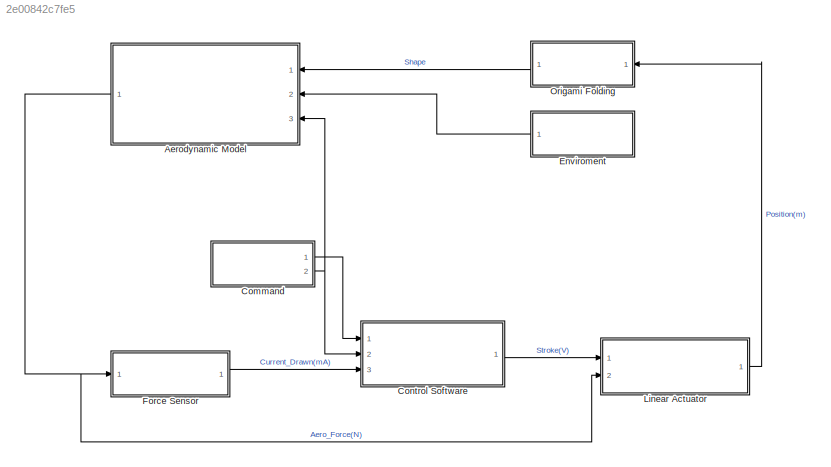
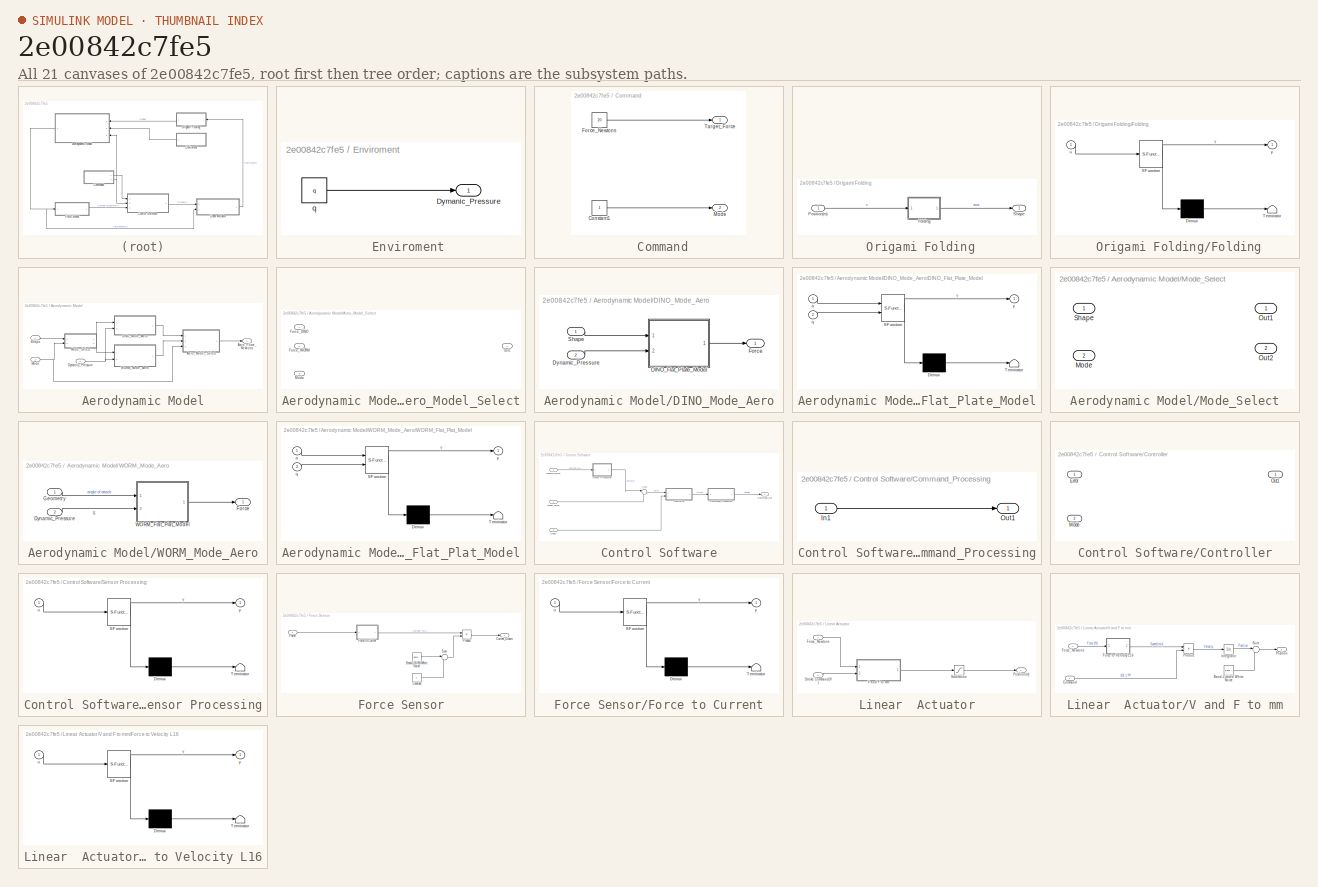
[diagram: thumbnail index - all 21 canvases of the model, root first then tree order]
MODEL slx_2e00842c7fe5
KIND model
CONFIG AbsTol = auto
CONFIG EnableMultiTasking = off
CONFIG FixedStep = auto
CONFIG MaxStep = auto
CONFIG MinStep = auto
CONFIG RelTol = 1e-3
CONFIG SampleTimeConstraint = Unconstrained
CONFIG Solver = VariableStepAuto
CONFIG SolverName = VariableStepAuto
CONFIG StartTime = 0.0
CONFIG StopTime = 10.0
BLOCK [SubSystem]   Enviroment
  Ports = [0, 1]
  RequestExecContextInheritance = off
  Variant = off
BLOCK [Outport]   Enviroment/Dymanic_Pressure
  IconDisplay = Port number
BLOCK [Constant]   Enviroment/q
  Value = q
BLOCK [SubSystem]  Command
  Ports = [0, 2]
  RequestExecContextInheritance = off
  Variant = off
BLOCK [Constant]  Command/Constant1
BLOCK [Constant]  Command/Force_Newtons
  Value = 20
BLOCK [Outport]  Command/Mode
  IconDisplay = Port number
  Port = 2
BLOCK [Outport]  Command/Target_Force
  IconDisplay = Port number
BLOCK [SubSystem]  Origami Folding
  Ports = [1, 1]
  RequestExecContextInheritance = off
  Variant = off
BLOCK [SubSystem]  Origami Folding/Folding
  ErrorFcn = Stateflow.Translate.translate
  PermitHierarchicalResolution = ExplicitOnly
  Ports = [1, 1]
  RequestExecContextInheritance = off
  SFBlockType = MATLAB Function
  TreatAsAtomicUnit = on
  Variant = off
BLOCK [Demux]  Origami Folding/Folding/ Demux 
  Outputs = 1
  Ports = [1, 1]
BLOCK [S-Function]  Origami Folding/Folding/ SFunction 
  EnableBusSupport = off
  FunctionName = sf_sfun
  PortCounts = [1 2]
  Ports = [1, 2]
  SFcnIsStateOwnerBlock = off
  SFunctionDeploymentMode = off
  Tag = Stateflow S-Function Junior_Project_Sim 6
BLOCK [Terminator]  Origami Folding/Folding/ Terminator 
BLOCK [Inport]  Origami Folding/Folding/u
  IconDisplay = Port number
BLOCK [Outport]  Origami Folding/Folding/y
  IconDisplay = Port number
BLOCK [Inport]  Origami Folding/Position(m)
  IconDisplay = Port number
BLOCK [Outport]  Origami Folding/Shape
  IconDisplay = Port number
BLOCK [SubSystem] Aerodynamic Model
  Ports = [3, 1]
  RequestExecContextInheritance = off
  Variant = off
BLOCK [Outport] Aerodynamic Model/Aero_Force_Newtons
  IconDisplay = Port number
BLOCK [SubSystem] Aerodynamic Model/Aero_Model_Select
  Ports = [3, 1]
  RequestExecContextInheritance = off
  Variant = off
BLOCK [Inport] Aerodynamic Model/Aero_Model_Select/Force_DINO
  IconDisplay = Port number
BLOCK [Inport] Aerodynamic Model/Aero_Model_Select/Force_WORM
  IconDisplay = Port number
  Port = 2
BLOCK [Inport] Aerodynamic Model/Aero_Model_Select/Mode
  IconDisplay = Port number
  Port = 3
BLOCK [Outport] Aerodynamic Model/Aero_Model_Select/Out1
  IconDisplay = Port number
BLOCK [SubSystem] Aerodynamic Model/DINO_Mode_Aero
  Ports = [2, 1]
  RequestExecContextInheritance = off
  Variant = off
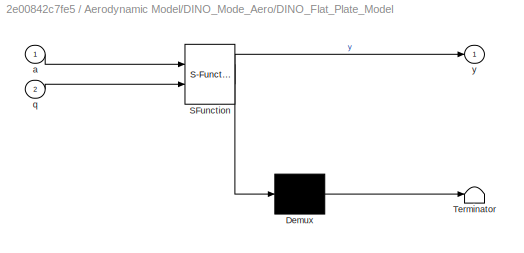
BLOCK [SubSystem] Aerodynamic Model/DINO_Mode_Aero/DINO_Flat_Plate_Model
  ErrorFcn = Stateflow.Translate.translate
  PermitHierarchicalResolution = ExplicitOnly
  Ports = [2, 1]
  RequestExecContextInheritance = off
  SFBlockType = MATLAB Function
  TreatAsAtomicUnit = on
  Variant = off
BLOCK [Demux] Aerodynamic Model/DINO_Mode_Aero/DINO_Flat_Plate_Model/ Demux 
  Outputs = 1
  Ports = [1, 1]
BLOCK [S-Function] Aerodynamic Model/DINO_Mode_Aero/DINO_Flat_Plate_Model/ SFunction 
  EnableBusSupport = off
  FunctionName = sf_sfun
  PortCounts = [2 2]
  Ports = [2, 2]
  SFcnIsStateOwnerBlock = off
  SFunctionDeploymentMode = off
  Tag = Stateflow S-Function Junior_Project_Sim 3
BLOCK [Terminator] Aerodynamic Model/DINO_Mode_Aero/DINO_Flat_Plate_Model/ Terminator 
BLOCK [Inport] Aerodynamic Model/DINO_Mode_Aero/DINO_Flat_Plate_Model/a
  IconDisplay = Port number
BLOCK [Inport] Aerodynamic Model/DINO_Mode_Aero/DINO_Flat_Plate_Model/q
  IconDisplay = Port number
  Port = 2
BLOCK [Outport] Aerodynamic Model/DINO_Mode_Aero/DINO_Flat_Plate_Model/y
  IconDisplay = Port number
BLOCK [Inport] Aerodynamic Model/DINO_Mode_Aero/Dynamic_Pressure
  IconDisplay = Port number
  Port = 2
BLOCK [Outport] Aerodynamic Model/DINO_Mode_Aero/Force
  IconDisplay = Port number
BLOCK [Inport] Aerodynamic Model/DINO_Mode_Aero/Shape
  IconDisplay = Port number
BLOCK [Inport] Aerodynamic Model/Dymanic_Pressure
  IconDisplay = Port number
  Port = 2
BLOCK [Inport] Aerodynamic Model/Mode
  IconDisplay = Port number
  Port = 3
BLOCK [SubSystem] Aerodynamic Model/Mode_Select
  Ports = [2, 2]
  RequestExecContextInheritance = off
  Variant = off
BLOCK [Inport] Aerodynamic Model/Mode_Select/Mode
  IconDisplay = Port number
  Port = 2
BLOCK [Outport] Aerodynamic Model/Mode_Select/Out1
  IconDisplay = Port number
BLOCK [Outport] Aerodynamic Model/Mode_Select/Out2
  IconDisplay = Port number
  Port = 2
BLOCK [Inport] Aerodynamic Model/Mode_Select/Shape
  IconDisplay = Port number
BLOCK [Inport] Aerodynamic Model/Shape
  IconDisplay = Port number
BLOCK [SubSystem] Aerodynamic Model/WORM_Mode_Aero
  Ports = [2, 1]
  RequestExecContextInheritance = off
  Variant = off
BLOCK [Inport] Aerodynamic Model/WORM_Mode_Aero/Dynamic_Pressure
  IconDisplay = Port number
  Port = 2
BLOCK [Outport] Aerodynamic Model/WORM_Mode_Aero/Force
  IconDisplay = Port number
BLOCK [Inport] Aerodynamic Model/WORM_Mode_Aero/Geometry
  IconDisplay = Port number
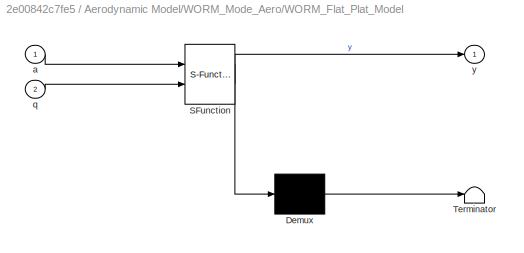
BLOCK [SubSystem] Aerodynamic Model/WORM_Mode_Aero/WORM_Flat_Plat_Model
  ErrorFcn = Stateflow.Translate.translate
  PermitHierarchicalResolution = ExplicitOnly
  Ports = [2, 1]
  RequestExecContextInheritance = off
  SFBlockType = MATLAB Function
  TreatAsAtomicUnit = on
  Variant = off
BLOCK [Demux] Aerodynamic Model/WORM_Mode_Aero/WORM_Flat_Plat_Model/ Demux 
  Outputs = 1
  Ports = [1, 1]
BLOCK [S-Function] Aerodynamic Model/WORM_Mode_Aero/WORM_Flat_Plat_Model/ SFunction 
  EnableBusSupport = off
  FunctionName = sf_sfun
  PortCounts = [2 2]
  Ports = [2, 2]
  SFcnIsStateOwnerBlock = off
  SFunctionDeploymentMode = off
  Tag = Stateflow S-Function Junior_Project_Sim 1
BLOCK [Terminator] Aerodynamic Model/WORM_Mode_Aero/WORM_Flat_Plat_Model/ Terminator 
BLOCK [Inport] Aerodynamic Model/WORM_Mode_Aero/WORM_Flat_Plat_Model/a
  IconDisplay = Port number
BLOCK [Inport] Aerodynamic Model/WORM_Mode_Aero/WORM_Flat_Plat_Model/q
  IconDisplay = Port number
  Port = 2
BLOCK [Outport] Aerodynamic Model/WORM_Mode_Aero/WORM_Flat_Plat_Model/y
  IconDisplay = Port number
BLOCK [SubSystem] Control Software
  Ports = [3, 1]
  RequestExecContextInheritance = off
  Variant = off
BLOCK [Outport] Control Software/Command_Out
  IconDisplay = Port number
BLOCK [SubSystem] Control Software/Command_Processing
  Ports = [1, 1]
  RequestExecContextInheritance = off
  Variant = off
BLOCK [Inport] Control Software/Command_Processing/In1
  IconDisplay = Port number
BLOCK [Outport] Control Software/Command_Processing/Out1
  IconDisplay = Port number
BLOCK [SubSystem] Control Software/Controller
  Ports = [2, 1]
  RequestExecContextInheritance = off
  Variant = off
BLOCK [Inport] Control Software/Controller/Error
  IconDisplay = Port number
BLOCK [Inport] Control Software/Controller/Mode
  IconDisplay = Port number
  Port = 2
BLOCK [Outport] Control Software/Controller/Out1
  IconDisplay = Port number
BLOCK [Inport] Control Software/Measure_Force
  IconDisplay = Port number
  Port = 3
BLOCK [Inport] Control Software/Mode
  IconDisplay = Port number
  Port = 2
BLOCK [SubSystem] Control Software/Sensor Processing
  ErrorFcn = Stateflow.Translate.translate
  PermitHierarchicalResolution = ExplicitOnly
  Ports = [1, 1]
  RequestExecContextInheritance = off
  SFBlockType = MATLAB Function
  TreatAsAtomicUnit = on
  Variant = off
BLOCK [Demux] Control Software/Sensor Processing/ Demux 
  Outputs = 1
  Ports = [1, 1]
BLOCK [S-Function] Control Software/Sensor Processing/ SFunction 
  EnableBusSupport = off
  FunctionName = sf_sfun
  PortCounts = [1 2]
  Ports = [1, 2]
  SFcnIsStateOwnerBlock = off
  SFunctionDeploymentMode = off
  Tag = Stateflow S-Function Junior_Project_Sim 5
BLOCK [Terminator] Control Software/Sensor Processing/ Terminator 
BLOCK [Inport] Control Software/Sensor Processing/u
  IconDisplay = Port number
BLOCK [Outport] Control Software/Sensor Processing/y
  IconDisplay = Port number
BLOCK [Sum] Control Software/Sum
  IconShape = round
  InputSameDT = off
  Inputs = |+-
  OutDataTypeStr = Inherit: Inherit via internal rule
  Ports = [2, 1]
  SaturateOnIntegerOverflow = off
BLOCK [Inport] Control Software/Target_Force
  IconDisplay = Port number
BLOCK [SubSystem] Force Sensor
  Ports = [1, 1]
  RequestExecContextInheritance = off
  Variant = off
BLOCK [Reference] Force Sensor/Band-Limited White Noise  REF=simulink/Sources/Band-Limited
White Noise
  Ports = [0, 1]
  SourceBlock = simulink/Sources/Band-Limited\nWhite Noise
  SourceType = Band-Limited White Noise.
BLOCK [Constant] Force Sensor/Constant
BLOCK [Outport] Force Sensor/Current_Drawn
  IconDisplay = Port number
BLOCK [Inport] Force Sensor/Force
  IconDisplay = Port number
BLOCK [SubSystem] Force Sensor/Force to Current
  ErrorFcn = Stateflow.Translate.translate
  PermitHierarchicalResolution = ExplicitOnly
  Ports = [1, 1]
  RequestExecContextInheritance = off
  SFBlockType = MATLAB Function
  TreatAsAtomicUnit = on
  Variant = off
BLOCK [Demux] Force Sensor/Force to Current/ Demux 
  Outputs = 1
  Ports = [1, 1]
BLOCK [S-Function] Force Sensor/Force to Current/ SFunction 
  EnableBusSupport = off
  FunctionName = sf_sfun
  PortCounts = [1 2]
  Ports = [1, 2]
  SFcnIsStateOwnerBlock = off
  SFunctionDeploymentMode = off
  Tag = Stateflow S-Function Junior_Project_Sim 4
BLOCK [Terminator] Force Sensor/Force to Current/ Terminator 
BLOCK [Inport] Force Sensor/Force to Current/u
  IconDisplay = Port number
BLOCK [Outport] Force Sensor/Force to Current/y
  IconDisplay = Port number
BLOCK [Product] Force Sensor/Product
  InputSameDT = off
  OutDataTypeStr = Inherit: Inherit via internal rule
  Ports = [2, 1]
  RndMeth = Floor
  SaturateOnIntegerOverflow = off
BLOCK [Sum] Force Sensor/Sum
  IconShape = round
  InputSameDT = off
  Inputs = |-+
  OutDataTypeStr = Inherit: Inherit via internal rule
  Ports = [2, 1]
  SaturateOnIntegerOverflow = off
BLOCK [SubSystem] Linear  Actuator
  Ports = [2, 1]
  RequestExecContextInheritance = off
  Variant = off
BLOCK [Inport] Linear  Actuator/Force_Newtons
  IconDisplay = Port number
  Port = 2
BLOCK [Outport] Linear  Actuator/Position(m)
  IconDisplay = Port number
BLOCK [Saturate] Linear  Actuator/Saturation
  InputPortMap = u0
  LowerLimit = 0
  Ports = [1, 1]
  UpperLimit = 0.140
BLOCK [Inport] Linear  Actuator/Stroke Command(V)
  IconDisplay = Port number
BLOCK [SubSystem] Linear  Actuator/V and F to mm
  Ports = [2, 1]
  RequestExecContextInheritance = off
  Variant = off
BLOCK [Reference] Linear  Actuator/V and F to mm/Band-Limited White Noise  REF=simulink/Sources/Band-Limited
White Noise
  Ports = [0, 1]
  SourceBlock = simulink/Sources/Band-Limited\nWhite Noise
  SourceType = Band-Limited White Noise.
BLOCK [Inport] Linear  Actuator/V and F to mm/Command
  IconDisplay = Port number
  Port = 2
BLOCK [SubSystem] Linear  Actuator/V and F to mm/Force to Velocity L16
  ErrorFcn = Stateflow.Translate.translate
  PermitHierarchicalResolution = ExplicitOnly
  Ports = [1, 1]
  RequestExecContextInheritance = off
  SFBlockType = MATLAB Function
  TreatAsAtomicUnit = on
  Variant = off
BLOCK [Demux] Linear  Actuator/V and F to mm/Force to Velocity L16/ Demux 
  Outputs = 1
  Ports = [1, 1]
BLOCK [S-Function] Linear  Actuator/V and F to mm/Force to Velocity L16/ SFunction 
  EnableBusSupport = off
  FunctionName = sf_sfun
  PortCounts = [1 2]
  Ports = [1, 2]
  SFcnIsStateOwnerBlock = off
  SFunctionDeploymentMode = off
  Tag = Stateflow S-Function Junior_Project_Sim 2
BLOCK [Terminator] Linear  Actuator/V and F to mm/Force to Velocity L16/ Terminator 
BLOCK [Inport] Linear  Actuator/V and F to mm/Force to Velocity L16/u
  IconDisplay = Port number
BLOCK [Outport] Linear  Actuator/V and F to mm/Force to Velocity L16/y
  IconDisplay = Port number
BLOCK [Inport] Linear  Actuator/V and F to mm/Force_Newtons
  IconDisplay = Port number
BLOCK [Integrator] Linear  Actuator/V and F to mm/Integrator
  Ports = [1, 1]
BLOCK [Outport] Linear  Actuator/V and F to mm/Position
  IconDisplay = Port number
BLOCK [Product] Linear  Actuator/V and F to mm/Product
  InputSameDT = off
  OutDataTypeStr = Inherit: Inherit via internal rule
  Ports = [2, 1]
  RndMeth = Floor
  SaturateOnIntegerOverflow = off
BLOCK [Sum] Linear  Actuator/V and F to mm/Sum
  IconShape = round
  InputSameDT = off
  Inputs = |++
  OutDataTypeStr = Inherit: Inherit via internal rule
  Ports = [2, 1]
  SaturateOnIntegerOverflow = off
ANNOTATION Aerodynamic Model/WORM_Mode_Aero: q
LINE   Enviroment/q:1 ->   Enviroment/Dymanic_Pressure:1
LINE   Enviroment:1 -> Aerodynamic Model:2
LINE  Command/Constant1:1 ->  Command/Mode:1
LINE  Command/Force_Newtons:1 ->  Command/Target_Force:1
LINE  Command:1 -> Control Software:1
NET  Command:2 -> Aerodynamic Model:3, Control Software:2
LINE  Origami Folding/Folding:1 ->  Origami Folding/Shape:1
LINE  Origami Folding/Position(m):1 ->  Origami Folding/Folding:1
LINE  Origami Folding:1 -> Aerodynamic Model:1
LINE Aerodynamic Model/Aero_Model_Select:1 -> Aerodynamic Model/Aero_Force_Newtons:1
LINE Aerodynamic Model/DINO_Mode_Aero/DINO_Flat_Plate_Model:1 -> Aerodynamic Model/DINO_Mode_Aero/Force:1
LINE Aerodynamic Model/DINO_Mode_Aero/Dynamic_Pressure:1 -> Aerodynamic Model/DINO_Mode_Aero/DINO_Flat_Plate_Model:2
LINE Aerodynamic Model/DINO_Mode_Aero/Shape:1 -> Aerodynamic Model/DINO_Mode_Aero/DINO_Flat_Plate_Model:1
LINE Aerodynamic Model/DINO_Mode_Aero:1 -> Aerodynamic Model/Aero_Model_Select:1
NET Aerodynamic Model/Dymanic_Pressure:1 -> Aerodynamic Model/DINO_Mode_Aero:2, Aerodynamic Model/WORM_Mode_Aero:2
NET Aerodynamic Model/Mode:1 -> Aerodynamic Model/Aero_Model_Select:3, Aerodynamic Model/Mode_Select:2
LINE Aerodynamic Model/Mode_Select:1 -> Aerodynamic Model/DINO_Mode_Aero:1
LINE Aerodynamic Model/Mode_Select:2 -> Aerodynamic Model/WORM_Mode_Aero:1
LINE Aerodynamic Model/Shape:1 -> Aerodynamic Model/Mode_Select:1
LINE Aerodynamic Model/WORM_Mode_Aero/Dynamic_Pressure:1 -> Aerodynamic Model/WORM_Mode_Aero/WORM_Flat_Plat_Model:2
LINE Aerodynamic Model/WORM_Mode_Aero/Geometry:1 -> Aerodynamic Model/WORM_Mode_Aero/WORM_Flat_Plat_Model:1
LINE Aerodynamic Model/WORM_Mode_Aero/WORM_Flat_Plat_Model:1 -> Aerodynamic Model/WORM_Mode_Aero/Force:1
LINE Aerodynamic Model/WORM_Mode_Aero:1 -> Aerodynamic Model/Aero_Model_Select:2
NET Aerodynamic Model:1 -> Force Sensor:1, Linear  Actuator:2
LINE Control Software/Command_Processing/In1:1 -> Control Software/Command_Processing/Out1:1
LINE Control Software/Command_Processing:1 -> Control Software/Command_Out:1
LINE Control Software/Controller:1 -> Control Software/Command_Processing:1
LINE Control Software/Measure_Force:1 -> Control Software/Sensor Processing:1
LINE Control Software/Mode:1 -> Control Software/Controller:2
LINE Control Software/Sensor Processing:1 -> Control Software/Sum:1
LINE Control Software/Sum:1 -> Control Software/Controller:1
LINE Control Software/Target_Force:1 -> Control Software/Sum:2
LINE Control Software:1 -> Linear  Actuator:1
LINE Force Sensor/Band-Limited White Noise:1 -> Force Sensor/Sum:1
LINE Force Sensor/Constant:1 -> Force Sensor/Sum:2
LINE Force Sensor/Force to Current:1 -> Force Sensor/Product:1
LINE Force Sensor/Force:1 -> Force Sensor/Force to Current:1
LINE Force Sensor/Product:1 -> Force Sensor/Current_Drawn:1
LINE Force Sensor/Sum:1 -> Force Sensor/Product:2
LINE Force Sensor:1 -> Control Software:3
LINE Linear  Actuator/Force_Newtons:1 -> Linear  Actuator/V and F to mm:1
LINE Linear  Actuator/Saturation:1 -> Linear  Actuator/Position(m):1
LINE Linear  Actuator/Stroke Command(V):1 -> Linear  Actuator/V and F to mm:2
LINE Linear  Actuator/V and F to mm/Band-Limited White Noise:1 -> Linear  Actuator/V and F to mm/Sum:2
LINE Linear  Actuator/V and F to mm/Command:1 -> Linear  Actuator/V and F to mm/Product:2
LINE Linear  Actuator/V and F to mm/Force to Velocity L16:1 -> Linear  Actuator/V and F to mm/Product:1
LINE Linear  Actuator/V and F to mm/Force_Newtons:1 -> Linear  Actuator/V and F to mm/Force to Velocity L16:1
LINE Linear  Actuator/V and F to mm/Integrator:1 -> Linear  Actuator/V and F to mm/Sum:1
LINE Linear  Actuator/V and F to mm/Product:1 -> Linear  Actuator/V and F to mm/Integrator:1
LINE Linear  Actuator/V and F to mm/Sum:1 -> Linear  Actuator/V and F to mm/Position:1
LINE Linear  Actuator/V and F to mm:1 -> Linear  Actuator/Saturation:1
LINE Linear  Actuator:1 ->  Origami Folding:1
note: NET lines group one-source signal fan-out (src -> all destinations, sorted); 1:1 wires keep LINE
CHART Aerodynamic Model/WORM_Mode_Aero/WORM_Flat_Plat_Model states=1 transitions=1
  STATE_LABEL 'eML_blk_kernel()'
  STATE_LABEL 'SCRIPT:\nfunction y = fcn(a,q)\n\nCD_Plate = -0.9*cos(2*a) + 0.9;\n\ny = CD_Plate.*q*FrontPlateLength*Width;'
CHART Linear  Actuator/V and F to mm/Force to Velocity L16 states=1 transitions=1
  STATE_LABEL 'eML_blk_kernel()'
  STATE_LABEL 'SCRIPT:\nfunction y = fcn(u)\n\n\ny = (-(4/200).*u + 8)*1000;\n'
CHART Aerodynamic Model/DINO_Mode_Aero/DINO_Flat_Plate_Model states=1 transitions=1
  STATE_LABEL 'eML_blk_kernel()'
  STATE_LABEL 'SCRIPT:\nfunction y = fcn(a,q)\n\nCD_Plate = -0.9.*cos(2.*a) + 0.9;\n\ny = CD_Plate.*q.*(2.*FrontPlateLength*Width + FrontPlateLength^2/2.*acos((cos(a)).^2));\n'
CHART Force Sensor/Force to Current states=1 transitions=1
  STATE_LABEL 'eML_blk_kernel()'
  STATE_LABEL 'SCRIPT:\nfunction y = fcn(u)\n\ny = ((400-55)/200).*u + 55;\n'
CHART Control Software/Sensor Processing states=1 transitions=1
  STATE_LABEL 'eML_blk_kernel()'
  STATE_LABEL 'SCRIPT:\nfunction y = fcn(u)\n\ny = (u - 55).*(200/345);\n'
CHART  Origami Folding/Folding states=1 transitions=1
  STATE_LABEL 'eML_blk_kernel()'
  STATE_LABEL 'SCRIPT:\nfunction y = fcn(u)\n\n index = 0;\n e_previous = 100;\nfor i = 1:length(Ax(:,1))\n    e_current = abs(u - Ax(i,1));\n    \n    if e_current < e_previous\n        index = i;\n    else\n        %do nothing   \n    end\n    \nend\ny = Ax(index,2);\n'
